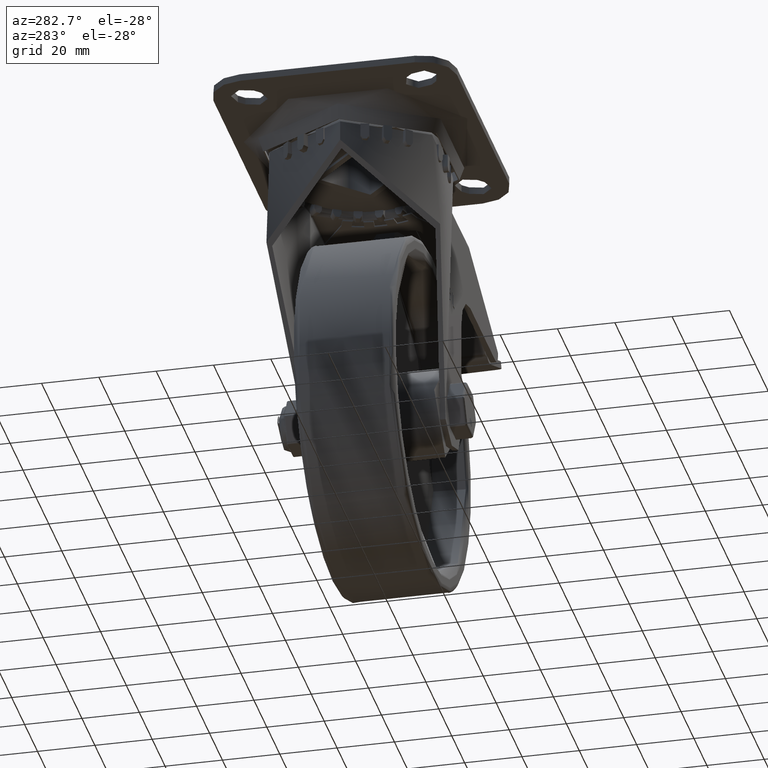
[diagram: clean part render]
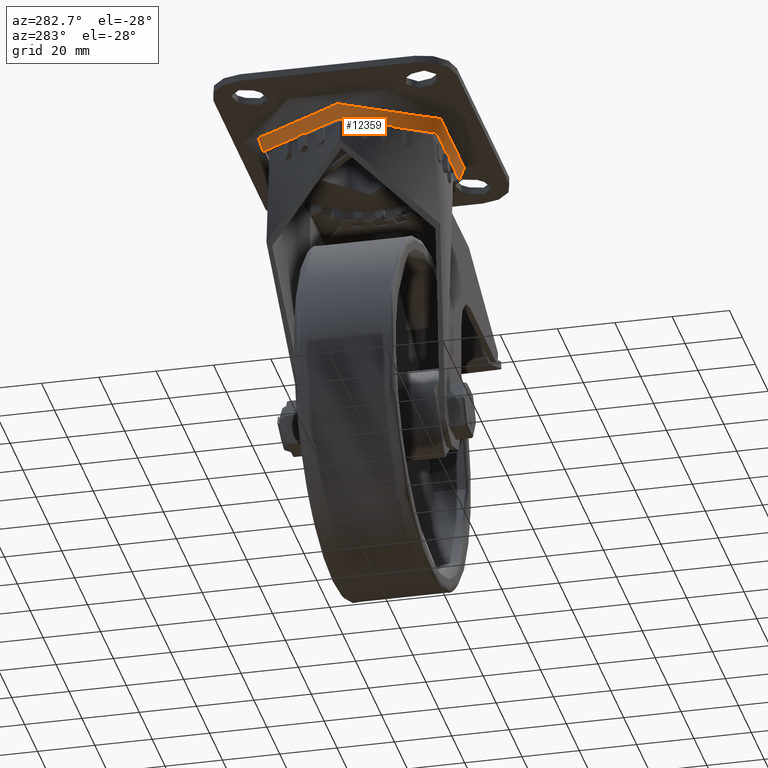
[diagram: same view with one face highlighted and labeled with its STEP entity id]
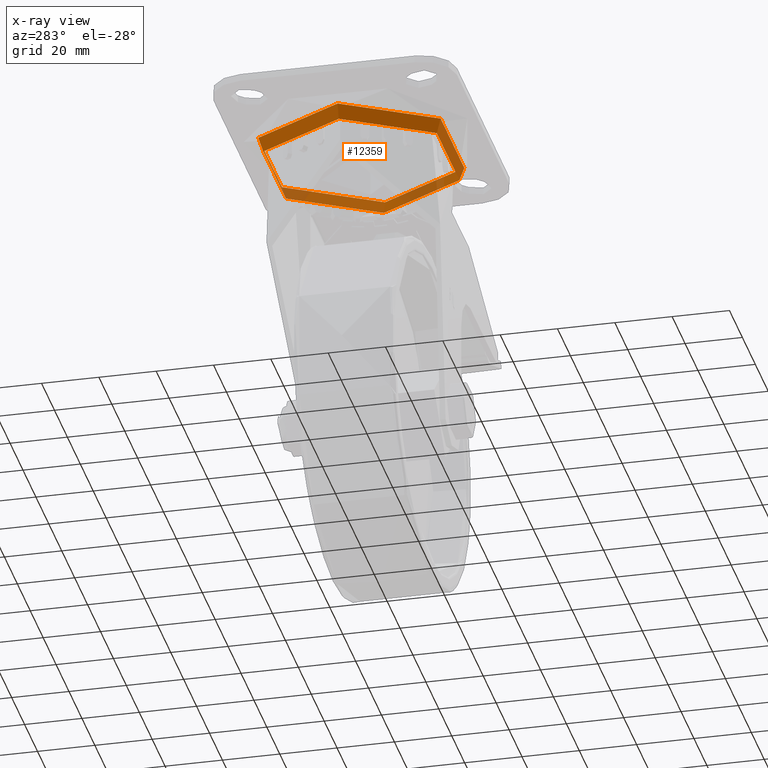
[diagram: x-ray of the same camera — body ghosted, the highlighted face saturated]
A machine part, auxiliary view. The second image highlights one B-rep face of the part: STEP entity #12359.
The next image is the same camera in x-ray: the body ghosted, the highlighted face saturated — about 14% of this face is hidden behind the body in this view.
In plain terms, the highlighted conical surface has half-angle 19.29 deg.
Its self-contained STEP definition (entity closure, byte-faithful):
#971=CONICAL_SURFACE('',#13430,35.846929178183,0.336674819386727);
#1268=FACE_OUTER_BOUND('',#1993,.T.);
#1993=EDGE_LOOP('',(#9741,#9742,#9743,#9744));
#2979=LINE('',#22353,#4132);
#4132=VECTOR('',#15589,35.846929178183);
#4932=CIRCLE('',#13424,36.721929178183);
#4935=CIRCLE('',#13429,34.971929178183);
#5706=VERTEX_POINT('',#22339);
#5709=VERTEX_POINT('',#22349);
#7139=EDGE_CURVE('',#5706,#5706,#4932,.T.);
#7145=EDGE_CURVE('',#5709,#5709,#4935,.T.);
#7146=EDGE_CURVE('',#5706,#5709,#2979,.T.);
#9741=ORIENTED_EDGE('',*,*,#7139,.T.);
#9742=ORIENTED_EDGE('',*,*,#7146,.T.);
#9743=ORIENTED_EDGE('',*,*,#7145,.F.);
#9744=ORIENTED_EDGE('',*,*,#7146,.F.);
#12359=ADVANCED_FACE('',(#1268),#971,.T.);
#13424=AXIS2_PLACEMENT_3D('',#22340,#15572,#15573);
#13429=AXIS2_PLACEMENT_3D('',#22351,#15585,#15586);
#13430=AXIS2_PLACEMENT_3D('',#22352,#15587,#15588);
#15572=DIRECTION('center_axis',(0.,0.,-1.));
#15573=DIRECTION('ref_axis',(-1.,0.,0.));
#15585=DIRECTION('center_axis',(0.,0.,-1.));
#15586=DIRECTION('ref_axis',(-1.,0.,0.));
#15587=DIRECTION('center_axis',(0.,0.,1.));
#15588=DIRECTION('ref_axis',(-1.,0.,0.));
#15589=DIRECTION('',(-0.330350424728106,-4.04562590240244E-17,-0.943858356366018));
#22339=CARTESIAN_POINT('',(36.721929178183,4.49713930265776E-15,-4.16517521236407));
#22340=CARTESIAN_POINT('Origin',(0.,0.,-4.16517521236407));
#22349=CARTESIAN_POINT('',(34.971929178183,4.28282611280697E-15,-9.16517521236406));
#22351=CARTESIAN_POINT('Origin',(0.,0.,-9.16517521236406));
#22352=CARTESIAN_POINT('Origin',(0.,0.,-6.66517521236407));
#22353=CARTESIAN_POINT('',(35.846929178183,4.38998270773237E-15,-6.66517521236407));